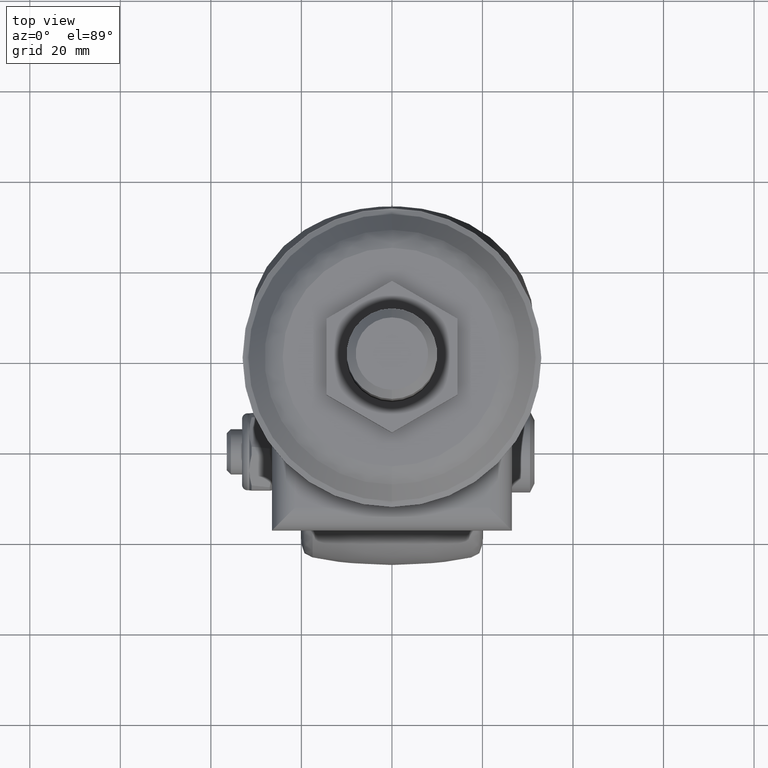
[diagram: clean part render]
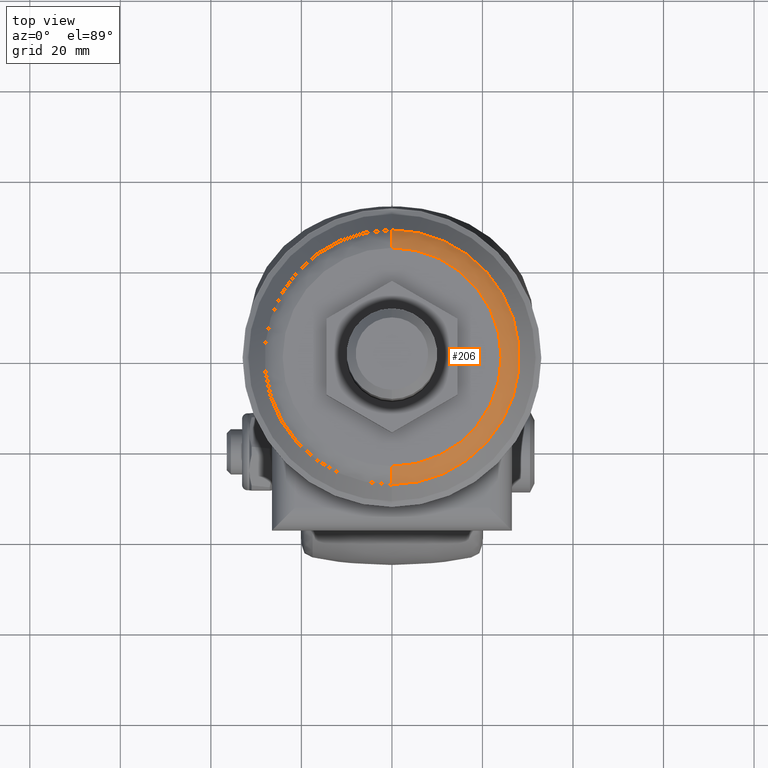
[diagram: same view with one face highlighted and labeled with its STEP entity id]
A machine part, top view. The second image highlights one B-rep face of the part: STEP entity #206.
In plain terms, the highlighted face is a freeform B-spline surface patch.
Its self-contained STEP definition (entity closure, byte-faithful):
#206=ADVANCED_FACE('',(#1230),#1229,.T.);
#1229=( BOUNDED_SURFACE() B_SPLINE_SURFACE( 2,2,((#2712,#2713,#2714),(#2715,#2716,#2717),(#2718,#2719,#2720),(#2721,#2722,#2723),(#2724,#2725,#2726)), .UNSPECIFIED.,.F.,.F.,.F.) B_SPLINE_SURFACE_WITH_KNOTS((3,2,3),(3,3),(0.00000000000E+00,5.00000000000E-01,1.00000000000E+00),(0.00000000000E+00,1.00000000000E+00), .UNSPECIFIED. ) GEOMETRIC_REPRESENTATION_ITEM() RATIONAL_B_SPLINE_SURFACE(((1.00000000000E+00,6.19402431825E-01,1.00000000000E+00),(7.07106781187E-01,4.37983659827E-01,7.07106781187E-01),(1.00000000000E+00,6.19402431825E-01,1.00000000000E+00),(7.07106781187E-01,4.37983659827E-01,7.07106781187E-01),(1.00000000000E+00,6.19402431825E-01,1.00000000000E+00))) REPRESENTATION_ITEM('') SURFACE() );
#1230=FACE_OUTER_BOUND('',#2727,.T.);
#2712=CARTESIAN_POINT('',(-1.13822186169E-19,-2.39291764773E+00,2.81421831732E+01));
#2713=CARTESIAN_POINT('',(-9.30242595942E-20,4.12470486333E+00,2.29999506441E+01));
#2714=CARTESIAN_POINT('',(-7.22263330198E-20,-2.39291764773E+00,1.78577181149E+01));
#2715=CARTESIAN_POINT('',(2.81422355331E+01,-2.39291764773E+00,2.81421831732E+01));
#2716=CARTESIAN_POINT('',(2.30000030039E+01,4.12470486333E+00,2.29999506441E+01));
#2717=CARTESIAN_POINT('',(1.78577704748E+01,-2.39291764773E+00,1.78577181149E+01));
#2718=CARTESIAN_POINT('',(2.81422355331E+01,-2.39291764773E+00,-5.23598743720E-05));
#2719=CARTESIAN_POINT('',(2.30000030039E+01,4.12470486333E+00,-5.23598743723E-05));
#2720=CARTESIAN_POINT('',(1.78577704748E+01,-2.39291764773E+00,-5.23598743726E-05));
#2721=CARTESIAN_POINT('',(2.81422355331E+01,-2.39291764773E+00,-2.81422878930E+01));
#2722=CARTESIAN_POINT('',(2.30000030039E+01,4.12470486333E+00,-2.30000553638E+01));
#2723=CARTESIAN_POINT('',(1.78577704748E+01,-2.39291764773E+00,-1.78578228346E+01));
#2724=CARTESIAN_POINT('',(3.44654368883E-15,-2.39291764773E+00,-2.81422878930E+01));
#2725=CARTESIAN_POINT('',(2.81678103017E-15,4.12470486333E+00,-2.30000553638E+01));
#2726=CARTESIAN_POINT('',(2.18701837152E-15,-2.39291764773E+00,-1.78578228346E+01));
#2727=EDGE_LOOP('',(#4104,#4105,#4106,#4107));
#4104=ORIENTED_EDGE('',*,*,#4626,.T.);
#4105=ORIENTED_EDGE('',*,*,#4623,.T.);
#4106=ORIENTED_EDGE('',*,*,#4423,.F.);
#4107=ORIENTED_EDGE('',*,*,#4625,.F.);
#4423=EDGE_CURVE('',#4953,#4954,#4955,.T.);
#4623=EDGE_CURVE('',#6273,#4954,#6274,.T.);
#4625=EDGE_CURVE('',#6280,#4953,#6287,.T.);
#4626=EDGE_CURVE('',#6280,#6273,#6293,.T.);
#4953=VERTEX_POINT('',#7357);
#4954=VERTEX_POINT('',#7358);
#4955=CIRCLE('',#7362,2.41401860340E+01);
#6273=VERTEX_POINT('',#8527);
#6274=(BOUNDED_CURVE() B_SPLINE_CURVE(2,(#8528,#8529,#8530),.UNSPECIFIED.,.F.,.F.) B_SPLINE_CURVE_WITH_KNOTS((3,3),(0.00000000000E+00,4.09542277456E-01),.UNSPECIFIED.) CURVE() GEOMETRIC_REPRESENTATION_ITEM() RATIONAL_B_SPLINE_CURVE((1.00000000000E+00,8.44129205135E-01,8.15929770906E-01)) REPRESENTATION_ITEM('') );
#6280=VERTEX_POINT('',#8531);
#6287=(BOUNDED_CURVE() B_SPLINE_CURVE(2,(#8536,#8537,#8538),.UNSPECIFIED.,.F.,.F.) B_SPLINE_CURVE_WITH_KNOTS((3,3),(0.00000000000E+00,4.09542310971E-01),.UNSPECIFIED.) CURVE() GEOMETRIC_REPRESENTATION_ITEM() RATIONAL_B_SPLINE_CURVE((7.50000000000E-01,6.33096894285E-01,6.11947324718E-01)) REPRESENTATION_ITEM('') );
#6293=CIRCLE('',#8542,2.81422355331E+01);
#7357=CARTESIAN_POINT('',(0.00000000000E+00,-4.84130210321E-06,2.41401336741E+01));
#7358=CARTESIAN_POINT('',(-1.18423789293E-15,-4.84130210321E-06,-2.41402383939E+01));
#7359=CARTESIAN_POINT('',(0.00000000000E+00,-4.84130210321E-06,-5.23598743740E-05));
#7360=DIRECTION('',(0.00000000000E+00,1.00000000000E+00,-0.00000000000E+00));
#7361=DIRECTION('',(-1.22460635382E-16,0.00000000000E+00,1.00000000000E+00));
#7362=AXIS2_PLACEMENT_3D('',#7359,#7360,#7361);
#8527=CARTESIAN_POINT('',(1.18423789293E-15,-2.39291764773E+00,-2.81422878930E+01));
#8528=CARTESIAN_POINT('',(-3.44631604446E-15,-2.39291764773E+00,-2.81422878930E+01));
#8529=CARTESIAN_POINT('',(-3.25707691537E-15,-4.34289803445E-01,-2.65969821014E+01));
#8530=CARTESIAN_POINT('',(-2.95622252121E-15,-4.84309063339E-06,-2.41402384040E+01));
#8531=CARTESIAN_POINT('',(0.00000000000E+00,-2.39291764773E+00,2.81421831732E+01));
#8536=CARTESIAN_POINT('',(2.36847578587E-15,-2.39291764773E+00,2.81421831732E+01));
#8537=CARTESIAN_POINT('',(2.23127014142E-15,-4.34289613562E-01,2.65968772319E+01));
#8538=CARTESIAN_POINT('',(2.44428305455E-15,-4.76955419127E-06,2.41401332682E+01));
#8539=CARTESIAN_POINT('',(0.00000000000E+00,-2.39291764773E+00,-5.23598743740E-05));
#8540=DIRECTION('',(0.00000000000E+00,1.00000000000E+00,-0.00000000000E+00));
#8541=DIRECTION('',(-1.22460635382E-16,0.00000000000E+00,1.00000000000E+00));
#8542=AXIS2_PLACEMENT_3D('',#8539,#8540,#8541);